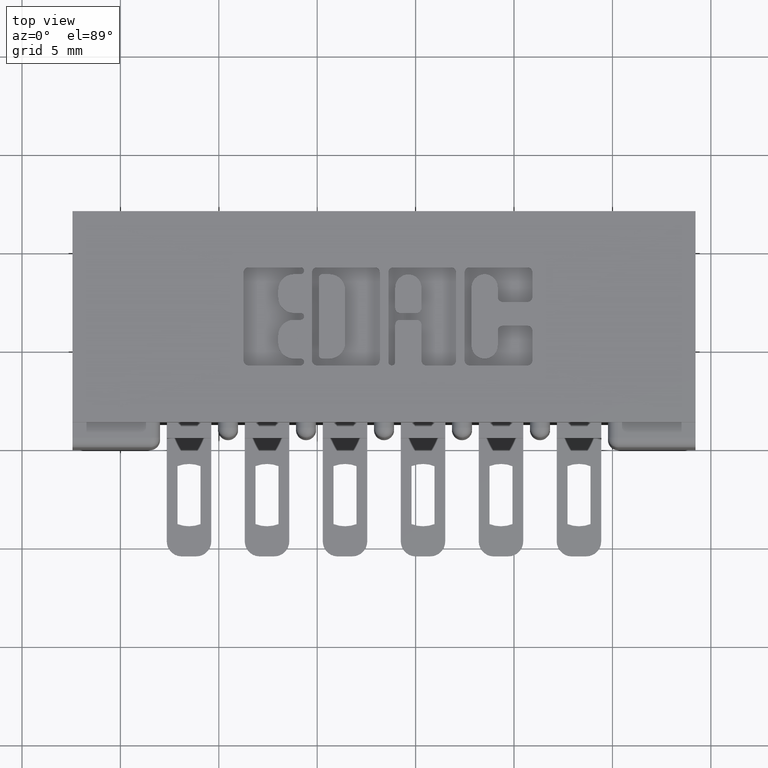
[diagram: clean part render]
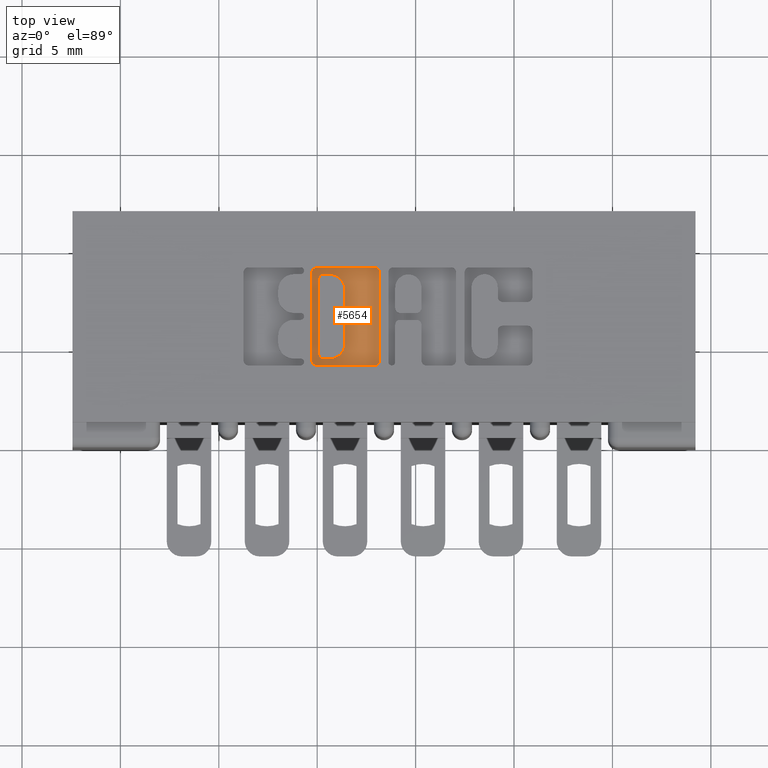
[diagram: same view with one face highlighted and labeled with its STEP entity id]
A machine part, top view. The second image highlights one B-rep face of the part: STEP entity #5654.
In plain terms, the highlighted planar face has unit normal (0, 0, 1).
Its self-contained STEP definition (entity closure, byte-faithful):
#23 = AXIS2_PLACEMENT_3D ( 'NONE', #7806, #903, #1664 ) ;
#33 = CARTESIAN_POINT ( 'NONE',  ( 0.8118006689826737800, 0.1775852362473141800, -0.01000000000000000000 ) ) ;
#85 = ORIENTED_EDGE ( 'NONE', *, *, #7971, .F. ) ;
#185 = DIRECTION ( 'NONE',  ( -0.0000000000000000000, 0.0000000000000000000, 1.000000000000000000 ) ) ;
#300 = EDGE_LOOP ( 'NONE', ( #468, #8922, #9229, #743, #5538, #1683, #85, #1706 ) ) ;
#306 = LINE ( 'NONE', #1491, #818 ) ;
#361 = ORIENTED_EDGE ( 'NONE', *, *, #5173, .T. ) ;
#391 = DIRECTION ( 'NONE',  ( 1.000000000000000000, 0.0000000000000000000, 0.0000000000000000000 ) ) ;
#421 = EDGE_CURVE ( 'NONE', #4263, #7688, #6851, .T. ) ;
#468 = ORIENTED_EDGE ( 'NONE', *, *, #6588, .F. ) ;
#512 = CARTESIAN_POINT ( 'NONE',  ( 0.7867707099630104600, 0.3601567020380510000, -0.01000000000000000000 ) ) ;
#572 = CIRCLE ( 'NONE', #3072, 0.03141014465217017300 ) ;
#641 = EDGE_CURVE ( 'NONE', #691, #5291, #4888, .T. ) ;
#691 = VERTEX_POINT ( 'NONE', #7960 ) ;
#743 = ORIENTED_EDGE ( 'NONE', *, *, #7772, .T. ) ;
#811 = CARTESIAN_POINT ( 'NONE',  ( 0.7906969780444990100, 0.1844562053899774200, -0.01000000000000000000 ) ) ;
#813 = VERTEX_POINT ( 'NONE', #7386 ) ;
#818 = VECTOR ( 'NONE', #6951, 39.37007874015748100 ) ;
#894 = EDGE_CURVE ( 'NONE', #3731, #3819, #3786, .T. ) ;
#900 = CIRCLE ( 'NONE', #945, 0.006870969142663185300 ) ;
#903 = DIRECTION ( 'NONE',  ( -0.0000000000000000000, 0.0000000000000000000, 1.000000000000000000 ) ) ;
#945 = AXIS2_PLACEMENT_3D ( 'NONE', #3942, #3980, #9396 ) ;
#964 = ORIENTED_EDGE ( 'NONE', *, *, #9756, .T. ) ;
#1061 = DIRECTION ( 'NONE',  ( 0.0000000000000000000, 1.000000000000000000, -0.0000000000000000000 ) ) ;
#1070 = ORIENTED_EDGE ( 'NONE', *, *, #6059, .T. ) ;
#1262 = CARTESIAN_POINT ( 'NONE',  ( 0.8118006689826782200, 0.3464147637527244000, -0.01000000000000000000 ) ) ;
#1346 = CIRCLE ( 'NONE', #9558, 0.009815670203841039800 ) ;
#1397 = LINE ( 'NONE', #8809, #8954 ) ;
#1446 = EDGE_CURVE ( 'NONE', #6016, #7688, #4879, .T. ) ;
#1491 = CARTESIAN_POINT ( 'NONE',  ( 0.0000000000000000000, 0.3601567020380510000, -0.01000000000000000000 ) ) ;
#1507 = ORIENTED_EDGE ( 'NONE', *, *, #894, .T. ) ;
#1653 = DIRECTION ( 'NONE',  ( 1.000000000000000000, 0.0000000000000000000, 0.0000000000000000000 ) ) ;
#1664 = DIRECTION ( 'NONE',  ( 1.000000000000000000, 0.0000000000000000000, 0.0000000000000000000 ) ) ;
#1683 = ORIENTED_EDGE ( 'NONE', *, *, #5304, .T. ) ;
#1706 = ORIENTED_EDGE ( 'NONE', *, *, #6932, .T. ) ;
#1733 = CIRCLE ( 'NONE', #23, 0.009815670203806891800 ) ;
#2076 = DIRECTION ( 'NONE',  ( -1.000000000000000000, 0.0000000000000000000, 0.0000000000000000000 ) ) ;
#2091 = DIRECTION ( 'NONE',  ( -0.0000000000000000000, 0.0000000000000000000, 1.000000000000000000 ) ) ;
#2226 = AXIS2_PLACEMENT_3D ( 'NONE', #4844, #185, #8628 ) ;
#2305 = ORIENTED_EDGE ( 'NONE', *, *, #6082, .T. ) ;
#2417 = EDGE_CURVE ( 'NONE', #5291, #8815, #1346, .T. ) ;
#2597 = CARTESIAN_POINT ( 'NONE',  ( 0.8432108136348439600, 0.2089953808994844400, -0.01000000000000000000 ) ) ;
#2724 = DIRECTION ( 'NONE',  ( 1.000000000000000000, 0.0000000000000000000, 0.0000000000000000000 ) ) ;
#2752 = DIRECTION ( 'NONE',  ( -0.0000000000000000000, 0.0000000000000000000, 1.000000000000000000 ) ) ;
#2788 = ORIENTED_EDGE ( 'NONE', *, *, #7959, .T. ) ;
#2899 = CARTESIAN_POINT ( 'NONE',  ( 0.7975679471871667300, 0.3395437946100566300, -0.01000000000000000000 ) ) ;
#2994 = VECTOR ( 'NONE', #8478, 39.37007874015748100 ) ;
#3072 = AXIS2_PLACEMENT_3D ( 'NONE', #4472, #5193, #6035 ) ;
#3258 = AXIS2_PLACEMENT_3D ( 'NONE', #3426, #9683, #2724 ) ;
#3306 = DIRECTION ( 'NONE',  ( 0.0000000000000000000, 1.000000000000000000, -0.0000000000000000000 ) ) ;
#3352 = FACE_BOUND ( 'NONE', #300, .T. ) ;
#3426 = CARTESIAN_POINT ( 'NONE',  ( 0.7867707099630104600, 0.3503410318342100000, -0.01000000000000000000 ) ) ;
#3434 = DIRECTION ( 'NONE',  ( 1.000000000000000000, 0.0000000000000000000, 0.0000000000000000000 ) ) ;
#3713 = DIRECTION ( 'NONE',  ( 0.0000000000000000000, -1.000000000000000000, 0.0000000000000000000 ) ) ;
#3731 = VERTEX_POINT ( 'NONE', #5265 ) ;
#3769 = CIRCLE ( 'NONE', #6277, 0.009815670203806754800 ) ;
#3786 = LINE ( 'NONE', #8096, #9888 ) ;
#3819 = VERTEX_POINT ( 'NONE', #4610 ) ;
#3843 = VECTOR ( 'NONE', #2076, 39.37007874015748100 ) ;
#3867 = DIRECTION ( 'NONE',  ( 1.000000000000000000, 0.0000000000000000000, 0.0000000000000000000 ) ) ;
#3873 = CARTESIAN_POINT ( 'NONE',  ( 0.7975679471871667300, 0.3464147637527244000, -0.01000000000000000000 ) ) ;
#3903 = DIRECTION ( 'NONE',  ( -0.0000000000000000000, 0.0000000000000000000, 1.000000000000000000 ) ) ;
#3942 = CARTESIAN_POINT ( 'NONE',  ( 0.7975679471871622800, 0.1844562053899774200, -0.01000000000000000000 ) ) ;
#3980 = DIRECTION ( 'NONE',  ( -0.0000000000000000000, 0.0000000000000000000, 1.000000000000000000 ) ) ;
#4263 = VERTEX_POINT ( 'NONE', #3873 ) ;
#4297 = CARTESIAN_POINT ( 'NONE',  ( 0.8118006689826720000, 0.3150046191005524400, -0.01000000000000000000 ) ) ;
#4425 = VERTEX_POINT ( 'NONE', #2597 ) ;
#4472 = CARTESIAN_POINT ( 'NONE',  ( 0.8118006689826737800, 0.2089953808994844400, -0.01000000000000000000 ) ) ;
#4497 = CARTESIAN_POINT ( 'NONE',  ( 0.8432108136348439600, 0.3150046191005524400, -0.01000000000000000000 ) ) ;
#4610 = CARTESIAN_POINT ( 'NONE',  ( 0.9025956183678624000, 0.1638432979619831300, -0.01000000000000000000 ) ) ;
#4665 = DIRECTION ( 'NONE',  ( 1.000000000000000000, 0.0000000000000000000, 0.0000000000000000000 ) ) ;
#4844 = CARTESIAN_POINT ( 'NONE',  ( 0.0000000000000000000, 0.0000000000000000000, -0.01000000000000000000 ) ) ;
#4879 = CIRCLE ( 'NONE', #8599, 0.03141014465217194900 ) ;
#4888 = LINE ( 'NONE', #7927, #8925 ) ;
#5033 = VECTOR ( 'NONE', #3713, 39.37007874015748100 ) ;
#5050 = CIRCLE ( 'NONE', #5991, 0.006870969142667693000 ) ;
#5173 = EDGE_CURVE ( 'NONE', #8965, #813, #9096, .T. ) ;
#5193 = DIRECTION ( 'NONE',  ( -0.0000000000000000000, 0.0000000000000000000, 1.000000000000000000 ) ) ;
#5265 = CARTESIAN_POINT ( 'NONE',  ( 0.7867707099629762700, 0.1638432979619831300, -0.01000000000000000000 ) ) ;
#5290 = CARTESIAN_POINT ( 'NONE',  ( 0.7769550397591695700, 0.1736589681657899100, -0.01000000000000000000 ) ) ;
#5291 = VERTEX_POINT ( 'NONE', #8126 ) ;
#5299 = VERTEX_POINT ( 'NONE', #5290 ) ;
#5304 = EDGE_CURVE ( 'NONE', #6172, #6451, #7993, .T. ) ;
#5318 = EDGE_CURVE ( 'NONE', #6172, #4425, #572, .T. ) ;
#5532 = CARTESIAN_POINT ( 'NONE',  ( 0.9025956183678282000, 0.3503410318342098900, -0.01000000000000000000 ) ) ;
#5538 = ORIENTED_EDGE ( 'NONE', *, *, #5318, .F. ) ;
#5594 = ORIENTED_EDGE ( 'NONE', *, *, #2417, .T. ) ;
#5654 = ADVANCED_FACE ( 'NONE', ( #3352, #5906 ), #7870, .T. ) ;
#5906 = FACE_OUTER_BOUND ( 'NONE', #7833, .T. ) ;
#5991 = AXIS2_PLACEMENT_3D ( 'NONE', #2899, #2091, #3867 ) ;
#6016 = VERTEX_POINT ( 'NONE', #4497 ) ;
#6035 = DIRECTION ( 'NONE',  ( 1.000000000000000000, 0.0000000000000000000, 0.0000000000000000000 ) ) ;
#6059 = EDGE_CURVE ( 'NONE', #8815, #8965, #306, .T. ) ;
#6082 = EDGE_CURVE ( 'NONE', #813, #5299, #8346, .T. ) ;
#6154 = CARTESIAN_POINT ( 'NONE',  ( 0.7769550397591695700, 0.0000000000000000000, -0.01000000000000000000 ) ) ;
#6172 = VERTEX_POINT ( 'NONE', #33 ) ;
#6218 = VERTEX_POINT ( 'NONE', #9497 ) ;
#6243 = LINE ( 'NONE', #6877, #5033 ) ;
#6277 = AXIS2_PLACEMENT_3D ( 'NONE', #8971, #8871, #391 ) ;
#6451 = VERTEX_POINT ( 'NONE', #6568 ) ;
#6568 = CARTESIAN_POINT ( 'NONE',  ( 0.7975679471871622800, 0.1775852362473141800, -0.01000000000000000000 ) ) ;
#6588 = EDGE_CURVE ( 'NONE', #4263, #6218, #5050, .T. ) ;
#6851 = LINE ( 'NONE', #8015, #6971 ) ;
#6877 = CARTESIAN_POINT ( 'NONE',  ( 0.8432108136348439600, 0.0000000000000000000, -0.01000000000000000000 ) ) ;
#6932 = EDGE_CURVE ( 'NONE', #7290, #6218, #1397, .T. ) ;
#6951 = DIRECTION ( 'NONE',  ( -1.000000000000000000, 0.0000000000000000000, 0.0000000000000000000 ) ) ;
#6971 = VECTOR ( 'NONE', #4665, 39.37007874015748100 ) ;
#7178 = CARTESIAN_POINT ( 'NONE',  ( 0.9025956183678963700, 0.3601567020380510000, -0.01000000000000000000 ) ) ;
#7290 = VERTEX_POINT ( 'NONE', #811 ) ;
#7378 = CARTESIAN_POINT ( 'NONE',  ( 0.0000000000000000000, 0.1775852362473141800, -0.01000000000000000000 ) ) ;
#7386 = CARTESIAN_POINT ( 'NONE',  ( 0.7769550397591695700, 0.3503410318342100000, -0.01000000000000000000 ) ) ;
#7688 = VERTEX_POINT ( 'NONE', #1262 ) ;
#7772 = EDGE_CURVE ( 'NONE', #6016, #4425, #6243, .T. ) ;
#7806 = CARTESIAN_POINT ( 'NONE',  ( 0.9025956183678624000, 0.1736589681657899100, -0.01000000000000000000 ) ) ;
#7833 = EDGE_LOOP ( 'NONE', ( #9675, #5594, #1070, #361, #2305, #964, #1507, #2788 ) ) ;
#7870 = PLANE ( 'NONE',  #2226 ) ;
#7927 = CARTESIAN_POINT ( 'NONE',  ( 0.9124112885716693100, 0.0000000000000000000, -0.01000000000000000000 ) ) ;
#7959 = EDGE_CURVE ( 'NONE', #3819, #691, #1733, .T. ) ;
#7960 = CARTESIAN_POINT ( 'NONE',  ( 0.9124112885716693100, 0.1736589681657899100, -0.01000000000000000000 ) ) ;
#7971 = EDGE_CURVE ( 'NONE', #7290, #6451, #900, .T. ) ;
#7993 = LINE ( 'NONE', #7378, #3843 ) ;
#8015 = CARTESIAN_POINT ( 'NONE',  ( 0.0000000000000000000, 0.3464147637527244000, -0.01000000000000000000 ) ) ;
#8096 = CARTESIAN_POINT ( 'NONE',  ( 0.0000000000000000000, 0.1638432979619831300, -0.01000000000000000000 ) ) ;
#8126 = CARTESIAN_POINT ( 'NONE',  ( 0.9124112885716693100, 0.3503410318342100000, -0.01000000000000000000 ) ) ;
#8193 = DIRECTION ( 'NONE',  ( 1.000000000000000000, 0.0000000000000000000, 0.0000000000000000000 ) ) ;
#8346 = LINE ( 'NONE', #6154, #2994 ) ;
#8478 = DIRECTION ( 'NONE',  ( 0.0000000000000000000, -1.000000000000000000, 0.0000000000000000000 ) ) ;
#8599 = AXIS2_PLACEMENT_3D ( 'NONE', #4297, #2752, #8193 ) ;
#8628 = DIRECTION ( 'NONE',  ( 1.000000000000000000, 0.0000000000000000000, 0.0000000000000000000 ) ) ;
#8809 = CARTESIAN_POINT ( 'NONE',  ( 0.7906969780444990100, 0.0000000000000000000, -0.01000000000000000000 ) ) ;
#8815 = VERTEX_POINT ( 'NONE', #7178 ) ;
#8871 = DIRECTION ( 'NONE',  ( -0.0000000000000000000, 0.0000000000000000000, 1.000000000000000000 ) ) ;
#8922 = ORIENTED_EDGE ( 'NONE', *, *, #421, .T. ) ;
#8925 = VECTOR ( 'NONE', #3306, 39.37007874015748100 ) ;
#8954 = VECTOR ( 'NONE', #1061, 39.37007874015748100 ) ;
#8965 = VERTEX_POINT ( 'NONE', #512 ) ;
#8971 = CARTESIAN_POINT ( 'NONE',  ( 0.7867707099629762700, 0.1736589681657899100, -0.01000000000000000000 ) ) ;
#9096 = CIRCLE ( 'NONE', #3258, 0.009815670203840902800 ) ;
#9229 = ORIENTED_EDGE ( 'NONE', *, *, #1446, .F. ) ;
#9396 = DIRECTION ( 'NONE',  ( 1.000000000000000000, 0.0000000000000000000, 0.0000000000000000000 ) ) ;
#9497 = CARTESIAN_POINT ( 'NONE',  ( 0.7906969780444990100, 0.3395437946100566300, -0.01000000000000000000 ) ) ;
#9558 = AXIS2_PLACEMENT_3D ( 'NONE', #5532, #3903, #1653 ) ;
#9675 = ORIENTED_EDGE ( 'NONE', *, *, #641, .T. ) ;
#9683 = DIRECTION ( 'NONE',  ( -0.0000000000000000000, 0.0000000000000000000, 1.000000000000000000 ) ) ;
#9756 = EDGE_CURVE ( 'NONE', #5299, #3731, #3769, .T. ) ;
#9888 = VECTOR ( 'NONE', #3434, 39.37007874015748100 ) ;